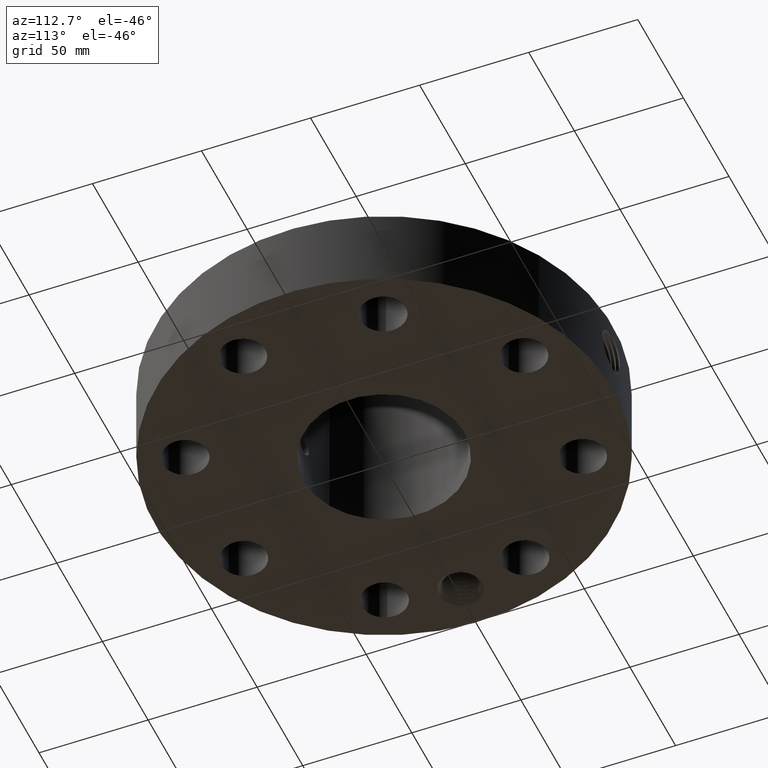
[diagram: clean part render]
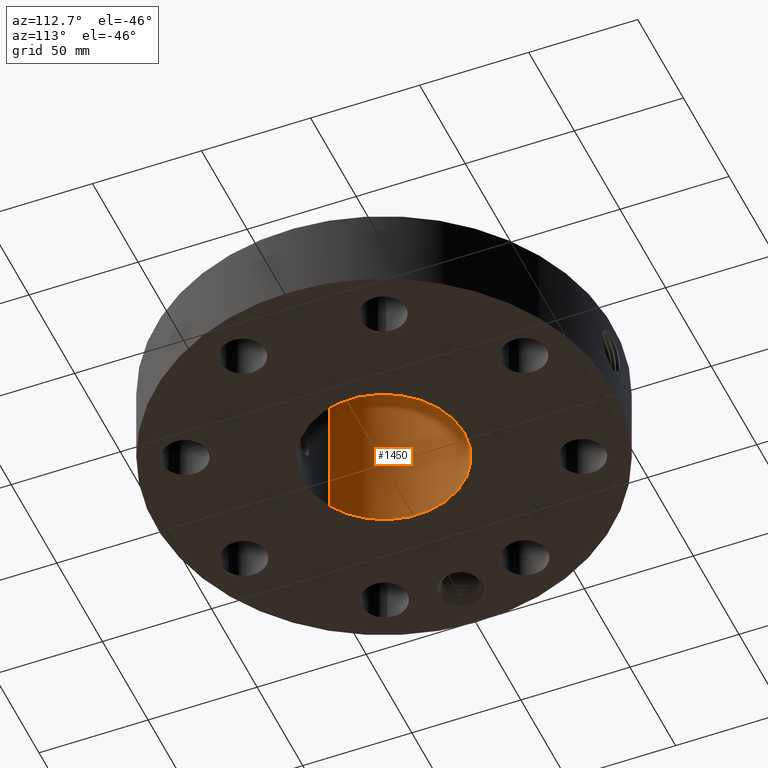
[diagram: same view with one face highlighted and labeled with its STEP entity id]
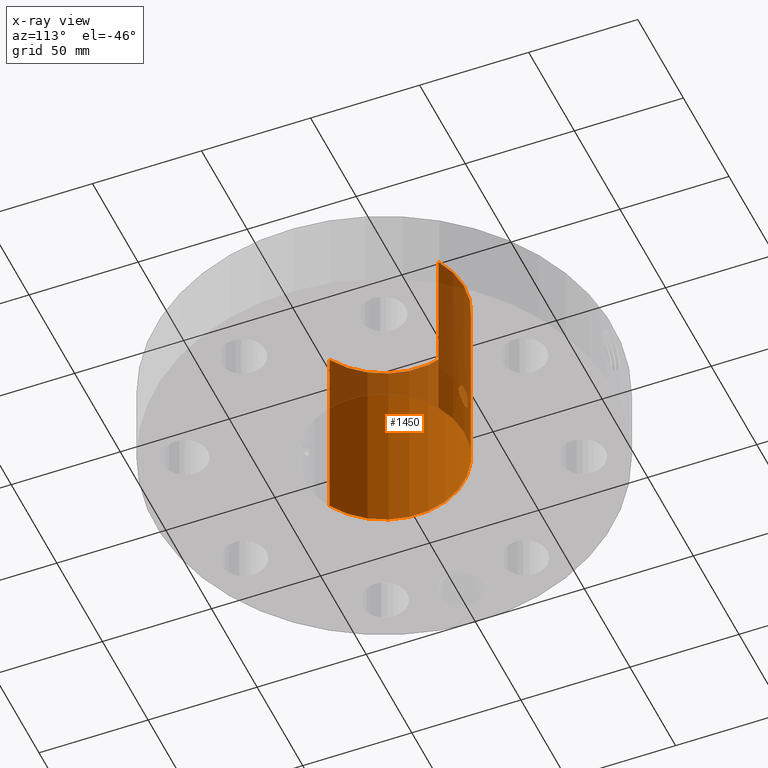
[diagram: x-ray of the same camera — body ghosted, the highlighted face saturated]
A machine part, auxiliary view. The second image highlights one B-rep face of the part: STEP entity #1450.
The next image is the same camera in x-ray: the body ghosted, the highlighted face saturated — about 30% of this face is hidden behind the body in this view.
In plain terms, the highlighted cylindrical surface (partial cylindrical patch) has radius 36.83 mm, axis along (0, 0, -1).
Its self-contained STEP definition (entity closure, byte-faithful):
#251=AXIS2_PLACEMENT_3D('Circle Axis2P3D',#249,#250,$) ;
#1327=AXIS2_PLACEMENT_3D('Cylinder Axis2P3D',#1324,#1325,#1326) ;
#1399=AXIS2_PLACEMENT_3D('Circle Axis2P3D',#1397,#1398,$) ;
#244=CARTESIAN_POINT('Vertex',(0.695167030979,1.27249471475,0.0600000000002)) ;
#246=CARTESIAN_POINT('Vertex',(-0.695167030979,-1.27249471475,0.0600000000002)) ;
#249=CARTESIAN_POINT('Axis2P3D Location',(0.,0.,0.0600000000002)) ;
#1324=CARTESIAN_POINT('Axis2P3D Location',(0.,0.,1.81000000001)) ;
#1333=CARTESIAN_POINT('Vertex',(0.695167030979,1.27249471475,3.56000000001)) ;
#1335=CARTESIAN_POINT('Vertex',(-0.695167030979,-1.27249471475,3.56000000001)) ;
#1338=CARTESIAN_POINT('Line Origine',(0.695167030979,1.27249471475,1.81000000001)) ;
#1343=CARTESIAN_POINT('Line Origine',(-0.695167030979,-1.27249471475,1.81000000001)) ;
#1397=CARTESIAN_POINT('Axis2P3D Location',(0.,0.,3.56000000001)) ;
#1409=CARTESIAN_POINT('Control Point',(0.16674068676,1.44038104104,1.03109085234)) ;
#1410=CARTESIAN_POINT('Control Point',(0.155853923544,1.44164130921,1.05101893873)) ;
#1411=CARTESIAN_POINT('Control Point',(0.141996407064,1.44314124179,1.06930891026)) ;
#1412=CARTESIAN_POINT('Control Point',(0.125490549821,1.44473002661,1.08538238987)) ;
#1413=CARTESIAN_POINT('Control Point',(0.0789323896308,1.4484002397,1.11874767956)) ;
#1414=CARTESIAN_POINT('Control Point',(0.0226598513549,1.45044587283,1.13333832418)) ;
#1415=CARTESIAN_POINT('Control Point',(-0.0125761969548,1.45058029167,1.13425764963)) ;
#1416=CARTESIAN_POINT('Control Point',(-0.0866433298139,1.44840984984,1.1191104087)) ;
#1417=CARTESIAN_POINT('Control Point',(-0.14594698553,1.44311502434,1.07140792088)) ;
#1418=CARTESIAN_POINT('Control Point',(-0.17036560141,1.44006401457,1.03774462375)) ;
#1419=CARTESIAN_POINT('Control Point',(-0.193202944241,1.43708588473,0.977080472774)) ;
#1420=CARTESIAN_POINT('Control Point',(-0.190291476897,1.43745485961,0.913683103903)) ;
#1421=CARTESIAN_POINT('Control Point',(-0.185696721076,1.43808039549,0.8908219164)) ;
#1422=CARTESIAN_POINT('Control Point',(-0.177733048214,1.43910854866,0.869030530344)) ;
#1423=CARTESIAN_POINT('Control Point',(-0.16674068676,1.44038104104,0.848909147669)) ;
#1424=CARTESIAN_POINT('Vertex',(0.16674068676,1.44038104104,1.03109085234)) ;
#1426=CARTESIAN_POINT('Vertex',(-0.16674068676,1.44038104104,0.848909147669)) ;
#1430=CARTESIAN_POINT('Control Point',(-0.16674068676,1.44038104104,0.848909147669)) ;
#1431=CARTESIAN_POINT('Control Point',(-0.155853923541,1.44164130921,0.828981061268)) ;
#1432=CARTESIAN_POINT('Control Point',(-0.141996407057,1.44314124179,0.810691089735)) ;
#1433=CARTESIAN_POINT('Control Point',(-0.125490549828,1.44473002661,0.794617610141)) ;
#1434=CARTESIAN_POINT('Control Point',(-0.0789323896332,1.4484002397,0.761252320447)) ;
#1435=CARTESIAN_POINT('Control Point',(-0.0226598513523,1.45044587283,0.74666167583)) ;
#1436=CARTESIAN_POINT('Control Point',(0.0125761969588,1.45058029167,0.745742350376)) ;
#1437=CARTESIAN_POINT('Control Point',(0.086643329821,1.44840984984,0.760889591311)) ;
#1438=CARTESIAN_POINT('Control Point',(0.145946985537,1.44311502434,0.808592079131)) ;
#1439=CARTESIAN_POINT('Control Point',(0.170365601408,1.44006401457,0.842255376252)) ;
#1440=CARTESIAN_POINT('Control Point',(0.193202944242,1.43708588473,0.902919527233)) ;
#1441=CARTESIAN_POINT('Control Point',(0.190291476897,1.43745485961,0.966316896106)) ;
#1442=CARTESIAN_POINT('Control Point',(0.185696721076,1.43808039549,0.989178083608)) ;
#1443=CARTESIAN_POINT('Control Point',(0.177733048214,1.43910854866,1.01096946966)) ;
#1444=CARTESIAN_POINT('Control Point',(0.16674068676,1.44038104104,1.03109085234)) ;
#250=DIRECTION('Axis2P3D Direction',(0.,0.,-0.0393700787402)) ;
#1325=DIRECTION('Axis2P3D Direction',(0.,0.,-0.0393700787402)) ;
#1326=DIRECTION('Axis2P3D XDirection',(-0.0188750212049,-0.0345504945626,0.)) ;
#1339=DIRECTION('Vector Direction',(0.,0.,-0.0393700787402)) ;
#1344=DIRECTION('Vector Direction',(0.,0.,-0.0393700787402)) ;
#1398=DIRECTION('Axis2P3D Direction',(0.,0.,-0.0393700787402)) ;
#1340=VECTOR('Line Direction',#1339,0.0393700787402) ;
#1345=VECTOR('Line Direction',#1344,0.0393700787402) ;
#1403=ORIENTED_EDGE('',*,*,#1401,.F.) ;
#1404=ORIENTED_EDGE('',*,*,#1347,.T.) ;
#1405=ORIENTED_EDGE('',*,*,#253,.T.) ;
#1406=ORIENTED_EDGE('',*,*,#1342,.F.) ;
#1447=ORIENTED_EDGE('',*,*,#1428,.F.) ;
#1448=ORIENTED_EDGE('',*,*,#1445,.F.) ;
#1449=FACE_BOUND('',#1446,.T.) ;
#1450=ADVANCED_FACE('PartBody',(#1407,#1449),#1328,.F.) ;
#1408=B_SPLINE_CURVE_WITH_KNOTS('',5,(#1409,#1410,#1411,#1412,#1413,#1414,#1415,#1416,#1417,#1418,#1419,#1420,#1421,#1422,#1423),.UNSPECIFIED.,.F.,.U.,(6,3,3,3,6),(0.,4.08473745389,10.1952038073,17.3395947614,21.4639529063),.UNSPECIFIED.) ;
#1429=B_SPLINE_CURVE_WITH_KNOTS('',5,(#1430,#1431,#1432,#1433,#1434,#1435,#1436,#1437,#1438,#1439,#1440,#1441,#1442,#1443,#1444),.UNSPECIFIED.,.F.,.U.,(6,3,3,3,6),(0.,4.08473745488,10.1952038082,17.3395947629,21.4639529077),.UNSPECIFIED.) ;
#252=CIRCLE('generated circle',#251,1.45000000001) ;
#1400=CIRCLE('generated circle',#1399,1.45000000001) ;
#1328=CYLINDRICAL_SURFACE('generated cylinder',#1327,1.45000000001) ;
#253=EDGE_CURVE('',#247,#245,#252,.T.) ;
#1342=EDGE_CURVE('',#1334,#245,#1341,.T.) ;
#1347=EDGE_CURVE('',#1336,#247,#1346,.T.) ;
#1401=EDGE_CURVE('',#1336,#1334,#1400,.T.) ;
#1428=EDGE_CURVE('',#1425,#1427,#1408,.T.) ;
#1445=EDGE_CURVE('',#1427,#1425,#1429,.T.) ;
#1402=EDGE_LOOP('',(#1403,#1404,#1405,#1406)) ;
#1446=EDGE_LOOP('',(#1447,#1448)) ;
#1407=FACE_OUTER_BOUND('',#1402,.T.) ;
#1341=LINE('Line',#1338,#1340) ;
#1346=LINE('Line',#1343,#1345) ;
#245=VERTEX_POINT('',#244) ;
#247=VERTEX_POINT('',#246) ;
#1334=VERTEX_POINT('',#1333) ;
#1336=VERTEX_POINT('',#1335) ;
#1425=VERTEX_POINT('',#1424) ;
#1427=VERTEX_POINT('',#1426) ;